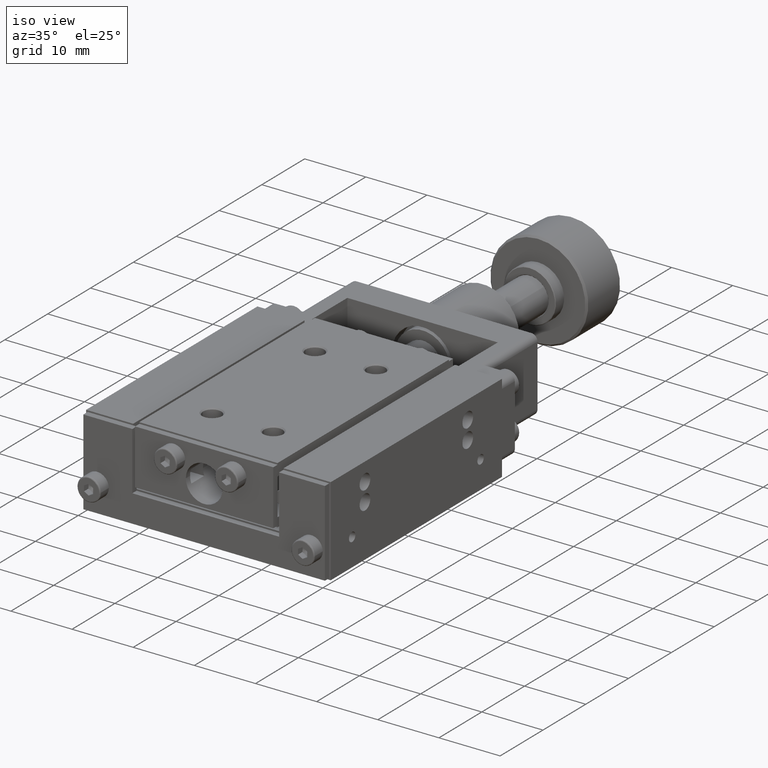
[diagram: clean part render]
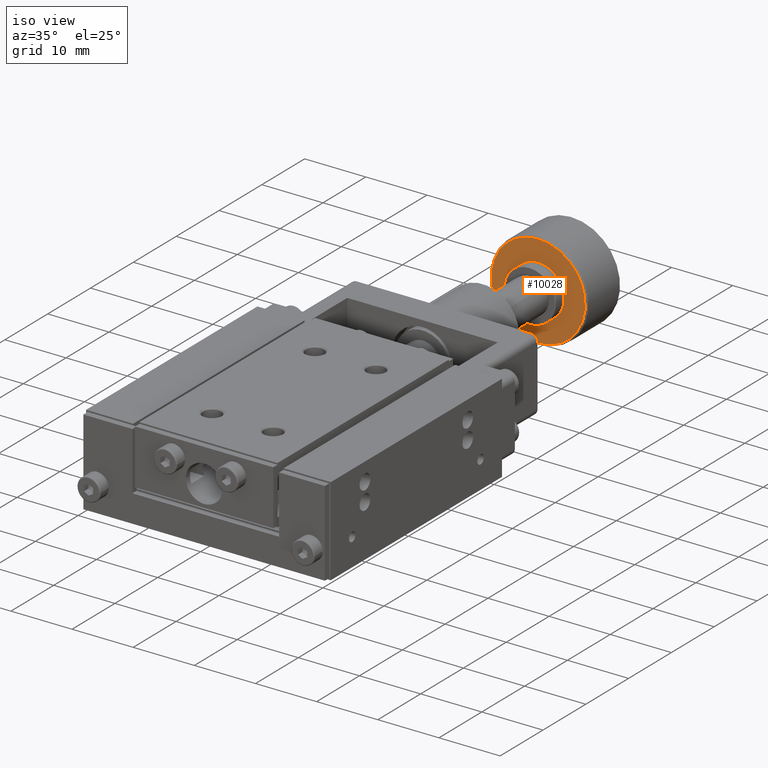
[diagram: same view with one face highlighted and labeled with its STEP entity id]
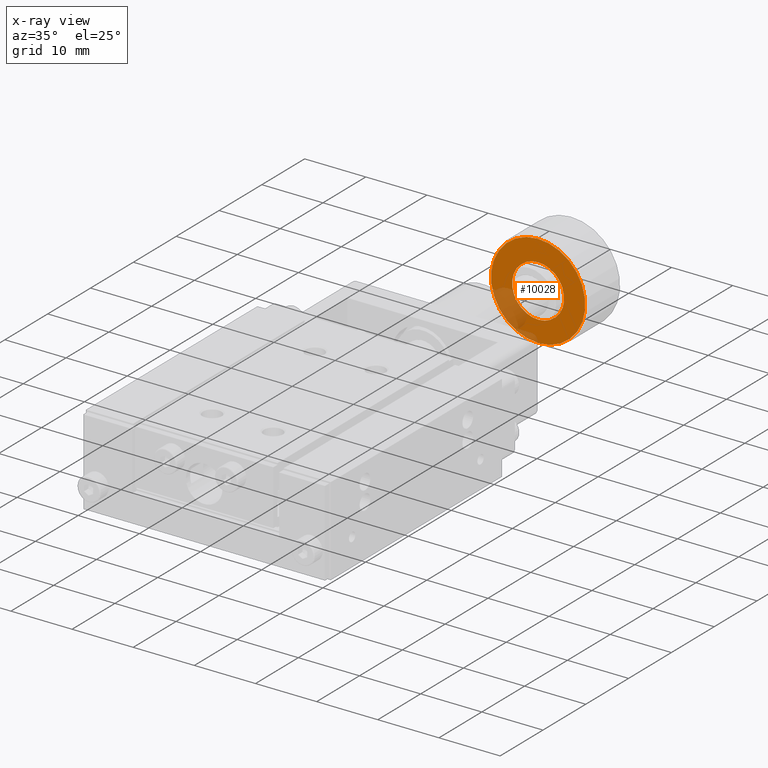
[diagram: x-ray of the same camera — body ghosted, the highlighted face saturated]
A machine part, iso view. The second image highlights one B-rep face of the part: STEP entity #10028.
The next image is the same camera in x-ray: the body ghosted, the highlighted face saturated — about 17% of this face is hidden behind the body in this view.
In plain terms, the highlighted planar face has unit normal (0, -1, 0).
Its self-contained STEP definition (entity closure, byte-faithful):
#420=FACE_BOUND('',#1598,.T.);
#641=PLANE('',#10582);
#1053=FACE_OUTER_BOUND('',#1597,.T.);
#1597=EDGE_LOOP('',(#7613));
#1598=EDGE_LOOP('',(#7614));
#3775=CIRCLE('',#10574,4.25);
#3778=CIRCLE('',#10581,7.7);
#4465=VERTEX_POINT('',#15814);
#4468=VERTEX_POINT('',#15828);
#5582=EDGE_CURVE('',#4465,#4465,#3775,.T.);
#5588=EDGE_CURVE('',#4468,#4468,#3778,.T.);
#7613=ORIENTED_EDGE('',*,*,#5588,.F.);
#7614=ORIENTED_EDGE('',*,*,#5582,.T.);
#10028=ADVANCED_FACE('',(#1053,#420),#641,.T.);
#10574=AXIS2_PLACEMENT_3D('',#15816,#11978,#11979);
#10581=AXIS2_PLACEMENT_3D('',#15829,#11995,#11996);
#10582=AXIS2_PLACEMENT_3D('',#15831,#11998,#11999);
#11978=DIRECTION('center_axis',(-3.19071304327182E-16,1.,-2.23250039632499E-16));
#11979=DIRECTION('ref_axis',(-0.475758637268262,4.45644199117022E-17,0.879575874535361));
#11995=DIRECTION('center_axis',(-3.19071304327182E-16,1.,-2.23250039632499E-16));
#11996=DIRECTION('ref_axis',(-0.475758637268262,4.45644199117022E-17,0.879575874535361));
#11998=DIRECTION('center_axis',(3.19071304327182E-16,-1.,2.23250039632499E-16));
#11999=DIRECTION('ref_axis',(0.475758637268262,-4.45644199117022E-17,-0.879575874535361));
#15814=CARTESIAN_POINT('',(13.3219742083901,76.9999999999999,-1.23819746677525));
#15816=CARTESIAN_POINT('Origin',(11.2999999999999,76.9999999999999,2.50000000000003));
#15828=CARTESIAN_POINT('',(14.9633415069656,76.9999999999999,-4.27273423392225));
#15829=CARTESIAN_POINT('Origin',(11.2999999999999,76.9999999999999,2.50000000000003));
#15831=CARTESIAN_POINT('Origin',(11.2999999999999,76.9999999999999,2.50000000000003));